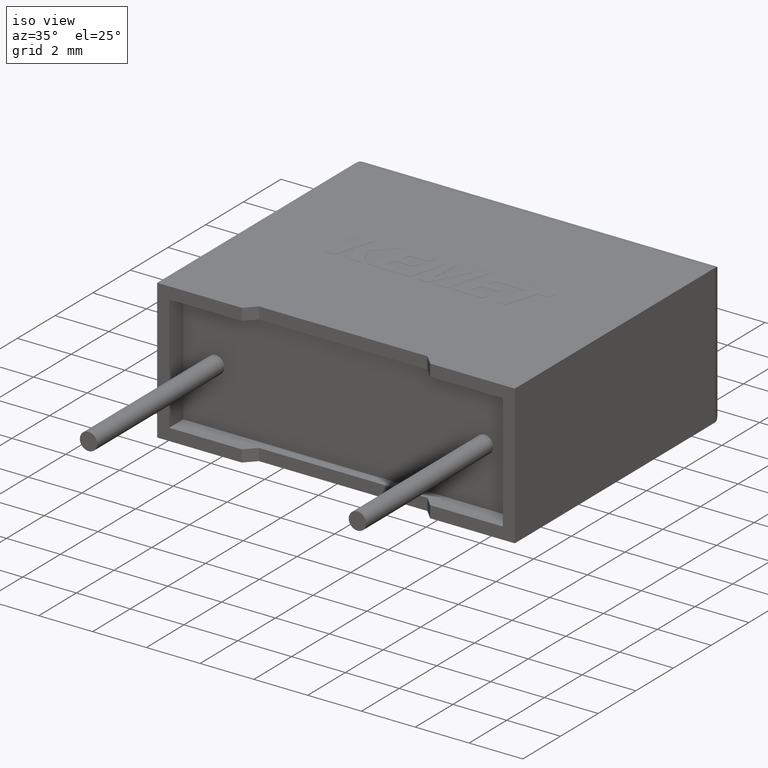
[diagram: clean part render]
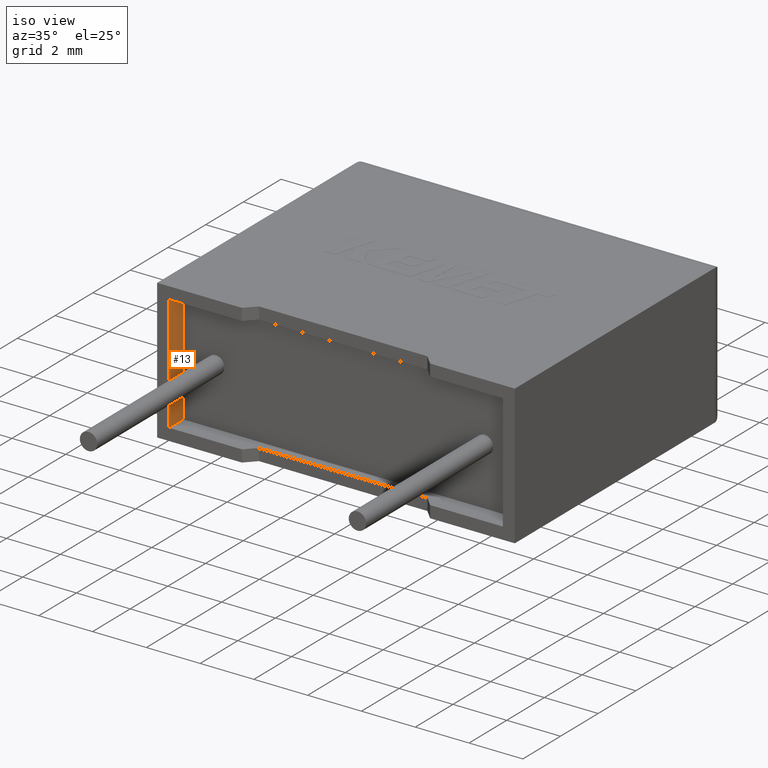
[diagram: same view with one face highlighted and labeled with its STEP entity id]
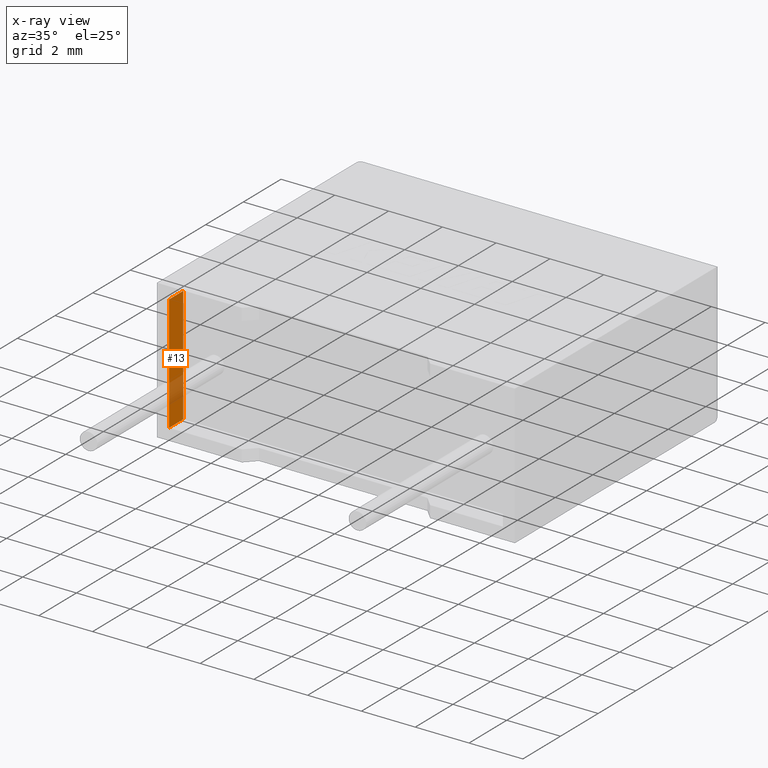
[diagram: x-ray of the same camera — body ghosted, the highlighted face saturated]
A machine part, iso view. The second image highlights one B-rep face of the part: STEP entity #13.
The next image is the same camera in x-ray: the body ghosted, the highlighted face saturated — about 17% of this face is hidden behind the body in this view.
In plain terms, the highlighted planar face has unit normal (-1, 0, -0).
Its self-contained STEP definition (entity closure, byte-faithful):
#13 = ADVANCED_FACE ( 'NONE', ( #1660 ), #2657, .F. ) ;
#58 = LINE ( 'NONE', #92, #2775 ) ;
#81 = ORIENTED_EDGE ( 'NONE', *, *, #1501, .T. ) ;
#92 = CARTESIAN_POINT ( 'NONE',  ( 0.4433332890000000193, 0.7500000000000000000, 0.4433332890000000193 ) ) ;
#97 = CARTESIAN_POINT ( 'NONE',  ( 0.4433332889999999082, 0.7500000000000000000, 4.756666710999998493 ) ) ;
#177 = ORIENTED_EDGE ( 'NONE', *, *, #2556, .T. ) ;
#261 = CARTESIAN_POINT ( 'NONE',  ( 0.4433332889999999082, 0.000000000000000000, 4.756666710999998493 ) ) ;
#320 = DIRECTION ( 'NONE',  ( -0.000000000000000000, -1.000000000000000000, -0.000000000000000000 ) ) ;
#333 = EDGE_CURVE ( 'NONE', #1667, #1107, #2010, .T. ) ;
#468 = VERTEX_POINT ( 'NONE', #960 ) ;
#684 = AXIS2_PLACEMENT_3D ( 'NONE', #1953, #1463, #2394 ) ;
#930 = VECTOR ( 'NONE', #2974, 1000.000000000000000 ) ;
#960 = CARTESIAN_POINT ( 'NONE',  ( 0.4433332890000000193, 0.000000000000000000, 0.4433332889999999082 ) ) ;
#1010 = LINE ( 'NONE', #97, #1311 ) ;
#1107 = VERTEX_POINT ( 'NONE', #1365 ) ;
#1185 = ORIENTED_EDGE ( 'NONE', *, *, #1975, .F. ) ;
#1203 = LINE ( 'NONE', #261, #1227 ) ;
#1227 = VECTOR ( 'NONE', #2624, 1000.000000000000000 ) ;
#1311 = VECTOR ( 'NONE', #1994, 1000.000000000000000 ) ;
#1325 = CARTESIAN_POINT ( 'NONE',  ( 0.4433332889999999082, 0.000000000000000000, 4.756666710999998493 ) ) ;
#1347 = CARTESIAN_POINT ( 'NONE',  ( 0.4433332889999999082, 0.7500000000000000000, 4.756666710999998493 ) ) ;
#1365 = CARTESIAN_POINT ( 'NONE',  ( 0.4433332890000000193, 0.7500000000000000000, 0.4433332890000000193 ) ) ;
#1463 = DIRECTION ( 'NONE',  ( -1.000000000000000000, 0.000000000000000000, -2.513606221479589745E-17 ) ) ;
#1501 = EDGE_CURVE ( 'NONE', #1652, #468, #1203, .T. ) ;
#1616 = EDGE_LOOP ( 'NONE', ( #81, #1185, #2745, #177 ) ) ;
#1652 = VERTEX_POINT ( 'NONE', #1325 ) ;
#1660 = FACE_OUTER_BOUND ( 'NONE', #1616, .T. ) ;
#1667 = VERTEX_POINT ( 'NONE', #1347 ) ;
#1953 = CARTESIAN_POINT ( 'NONE',  ( 0.4433332889999999082, 0.7500000000000000000, 4.756666710999998493 ) ) ;
#1975 = EDGE_CURVE ( 'NONE', #1107, #468, #58, .T. ) ;
#1994 = DIRECTION ( 'NONE',  ( -0.000000000000000000, -1.000000000000000000, -0.000000000000000000 ) ) ;
#2010 = LINE ( 'NONE', #2274, #930 ) ;
#2274 = CARTESIAN_POINT ( 'NONE',  ( 0.4433332889999999082, 0.7500000000000000000, 4.756666710999998493 ) ) ;
#2394 = DIRECTION ( 'NONE',  ( -2.513606221479589745E-17, 0.000000000000000000, 1.000000000000000000 ) ) ;
#2556 = EDGE_CURVE ( 'NONE', #1667, #1652, #1010, .T. ) ;
#2624 = DIRECTION ( 'NONE',  ( 2.513606221479589745E-17, 0.000000000000000000, -1.000000000000000000 ) ) ;
#2657 = PLANE ( 'NONE',  #684 ) ;
#2745 = ORIENTED_EDGE ( 'NONE', *, *, #333, .F. ) ;
#2775 = VECTOR ( 'NONE', #320, 1000.000000000000000 ) ;
#2974 = DIRECTION ( 'NONE',  ( 2.513606221479589745E-17, 0.000000000000000000, -1.000000000000000000 ) ) ;